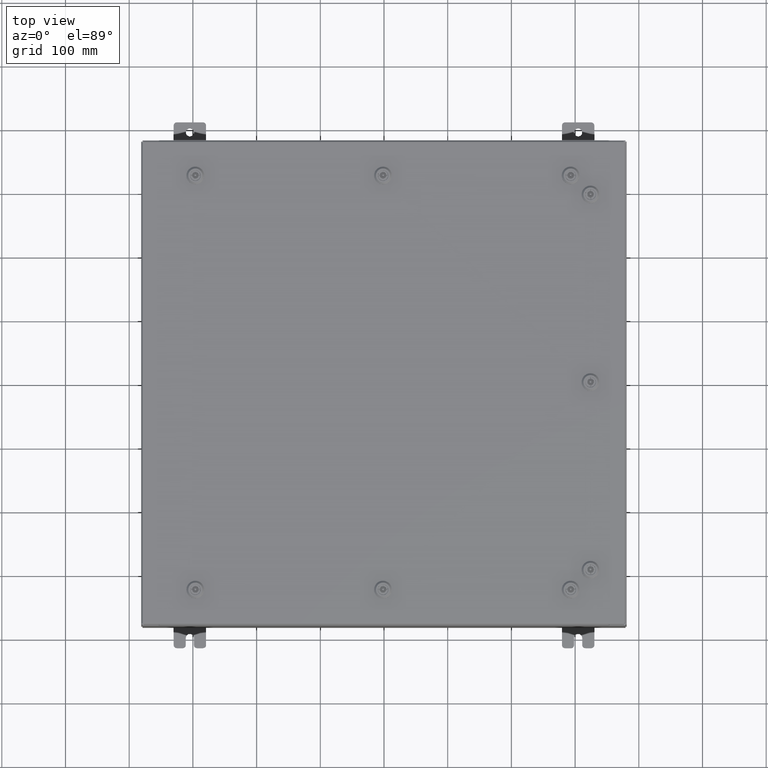
[diagram: clean part render]
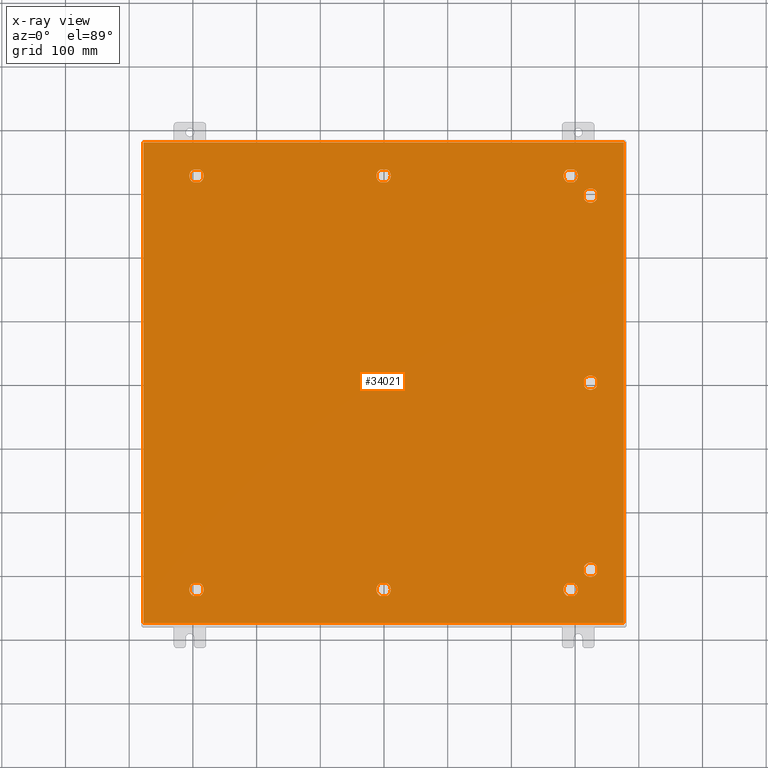
[diagram: x-ray — body ghosted, one internal face saturated and labeled with its STEP entity id]
A machine part, top view, then the same camera in x-ray: the body is ghosted and one INTERNAL B-rep face — a face not visible from any outside direction — is saturated and labeled: STEP entity #34021.
In plain terms, the highlighted planar face has unit normal (0, 0, -1).
Its self-contained STEP definition (entity closure, byte-faithful):
#157 = CARTESIAN_POINT ( 'NONE',  ( 12.78780000000000600, 11.56250000000001600, -0.07470000000000003000 ) ) ;
#445 = ORIENTED_EDGE ( 'NONE', *, *, #59019, .T. ) ;
#468 = EDGE_CURVE ( 'NONE', #18734, #53018, #52123, .T. ) ;
#869 = EDGE_LOOP ( 'NONE', ( #46917, #2688, #64497, #27289 ) ) ;
#1005 = ORIENTED_EDGE ( 'NONE', *, *, #56776, .T. ) ;
#1199 = DIRECTION ( 'NONE',  ( 1.095739467627838000E-014, -1.000000000000000000, 0.0000000000000000000 ) ) ;
#2067 = EDGE_CURVE ( 'NONE', #30515, #63431, #6011, .T. ) ;
#2154 = AXIS2_PLACEMENT_3D ( 'NONE', #18969, #54386, #24076 ) ;
#2299 = DIRECTION ( 'NONE',  ( -0.0000000000000000000, -0.0000000000000000000, 1.000000000000000000 ) ) ;
#2384 = DIRECTION ( 'NONE',  ( -1.000000000000000000, 0.0000000000000000000, 0.0000000000000000000 ) ) ;
#2539 = VERTEX_POINT ( 'NONE', #8014 ) ;
#2573 = ORIENTED_EDGE ( 'NONE', *, *, #9664, .T. ) ;
#2633 = VECTOR ( 'NONE', #42799, 39.37007874015748100 ) ;
#2651 = LINE ( 'NONE', #29884, #53403 ) ;
#2688 = ORIENTED_EDGE ( 'NONE', *, *, #4215, .T. ) ;
#2904 = VERTEX_POINT ( 'NONE', #10108 ) ;
#2972 = CARTESIAN_POINT ( 'NONE',  ( 1.529834876451987200E-014, -12.78779999999999400, -0.07470000000000003000 ) ) ;
#3131 = CARTESIAN_POINT ( 'NONE',  ( 1.529834876451987200E-014, 12.78779999999999400, -0.07470000000000003000 ) ) ;
#3178 = CARTESIAN_POINT ( 'NONE',  ( 11.56249999999998200, 12.78779999999999400, -0.07470000000000003000 ) ) ;
#3341 = CARTESIAN_POINT ( 'NONE',  ( 13.18280000000000400, 11.36304762473213100, -0.07470000000000003000 ) ) ;
#3354 = ORIENTED_EDGE ( 'NONE', *, *, #15461, .F. ) ;
#3480 = VERTEX_POINT ( 'NONE', #58962 ) ;
#3527 = DIRECTION ( 'NONE',  ( -1.000000000000000000, 0.0000000000000000000, 0.0000000000000000000 ) ) ;
#3657 = ORIENTED_EDGE ( 'NONE', *, *, #14268, .T. ) ;
#4109 = CARTESIAN_POINT ( 'NONE',  ( 12.39280000000001000, -11.36304762473213300, -0.07470000000000003000 ) ) ;
#4215 = EDGE_CURVE ( 'NONE', #37140, #33533, #12246, .T. ) ;
#4331 = CARTESIAN_POINT ( 'NONE',  ( 0.1994523752679070700, -13.18279999999998400, -0.07470000000000000300 ) ) ;
#4383 = CARTESIAN_POINT ( 'NONE',  ( 1.529834876451987200E-014, -12.78779999999999400, -0.07470000000000003000 ) ) ;
#4493 = VERTEX_POINT ( 'NONE', #33648 ) ;
#4549 = DIRECTION ( 'NONE',  ( 1.000000000000000000, 0.0000000000000000000, 0.0000000000000000000 ) ) ;
#4651 = ORIENTED_EDGE ( 'NONE', *, *, #45382, .T. ) ;
#4764 = DIRECTION ( 'NONE',  ( -0.0000000000000000000, -0.0000000000000000000, 1.000000000000000000 ) ) ;
#5079 = AXIS2_PLACEMENT_3D ( 'NONE', #64205, #33937, #3527 ) ;
#5269 = DIRECTION ( 'NONE',  ( -1.000000000000000000, 0.0000000000000000000, 0.0000000000000000000 ) ) ;
#5426 = EDGE_CURVE ( 'NONE', #58402, #4493, #29630, .T. ) ;
#5647 = FACE_BOUND ( 'NONE', #24410, .T. ) ;
#5863 = EDGE_CURVE ( 'NONE', #31769, #30515, #33573, .T. ) ;
#6011 = CIRCLE ( 'NONE', #36255, 0.4424999999999973400 ) ;
#6072 = CARTESIAN_POINT ( 'NONE',  ( 12.39280000000001400, -11.76195237526790500, -0.07470000000000003000 ) ) ;
#6112 = EDGE_CURVE ( 'NONE', #30696, #13565, #65263, .T. ) ;
#6473 = CARTESIAN_POINT ( 'NONE',  ( 11.36304762473210100, -12.39279999999999800, -0.07470000000000000300 ) ) ;
#6543 = LINE ( 'NONE', #41663, #45356 ) ;
#6623 = CIRCLE ( 'NONE', #2154, 0.4424999999999983400 ) ;
#7254 = FACE_BOUND ( 'NONE', #56861, .T. ) ;
#7258 = DIRECTION ( 'NONE',  ( -0.0000000000000000000, -0.0000000000000000000, 1.000000000000000000 ) ) ;
#7345 = EDGE_CURVE ( 'NONE', #2904, #58137, #33582, .T. ) ;
#8014 = CARTESIAN_POINT ( 'NONE',  ( 0.1994523752678995500, 12.39279999999999800, -0.07470000000000000300 ) ) ;
#8059 = DIRECTION ( 'NONE',  ( -0.0000000000000000000, -0.0000000000000000000, 1.000000000000000000 ) ) ;
#8113 = CARTESIAN_POINT ( 'NONE',  ( -0.1994523752678689600, -12.39279999999999800, -0.07470000000000003000 ) ) ;
#8224 = DIRECTION ( 'NONE',  ( -1.000000000000000000, 0.0000000000000000000, 0.0000000000000000000 ) ) ;
#8273 = DIRECTION ( 'NONE',  ( -1.000000000000000000, 0.0000000000000000000, 0.0000000000000000000 ) ) ;
#8297 = ORIENTED_EDGE ( 'NONE', *, *, #27475, .T. ) ;
#8399 = DIRECTION ( 'NONE',  ( -0.0000000000000000000, -0.0000000000000000000, 1.000000000000000000 ) ) ;
#9028 = VERTEX_POINT ( 'NONE', #42970 ) ;
#9091 = DIRECTION ( 'NONE',  ( -1.000000000000000000, 0.0000000000000000000, 0.0000000000000000000 ) ) ;
#9293 = DIRECTION ( 'NONE',  ( -0.0000000000000000000, -0.0000000000000000000, 1.000000000000000000 ) ) ;
#9480 = DIRECTION ( 'NONE',  ( -1.000000000000000000, 0.0000000000000000000, 0.0000000000000000000 ) ) ;
#9621 = CARTESIAN_POINT ( 'NONE',  ( 0.1994523752679067700, -13.18279999999998400, -0.07470000000000003000 ) ) ;
#9664 = EDGE_CURVE ( 'NONE', #34633, #62739, #53310, .T. ) ;
#9792 = ORIENTED_EDGE ( 'NONE', *, *, #44309, .T. ) ;
#9827 = AXIS2_PLACEMENT_3D ( 'NONE', #39625, #9293, #44697 ) ;
#9863 = EDGE_CURVE ( 'NONE', #27432, #46899, #46905, .T. ) ;
#9887 = LINE ( 'NONE', #61822, #48722 ) ;
#9947 = DIRECTION ( 'NONE',  ( 1.000000000000000000, 0.0000000000000000000, 0.0000000000000000000 ) ) ;
#10108 = CARTESIAN_POINT ( 'NONE',  ( 14.84979999999999700, -14.84979999999999700, -0.07470000000000000300 ) ) ;
#10440 = ORIENTED_EDGE ( 'NONE', *, *, #21283, .T. ) ;
#10588 = LINE ( 'NONE', #34919, #49408 ) ;
#11103 = AXIS2_PLACEMENT_3D ( 'NONE', #42548, #12252, #47649 ) ;
#11206 = CIRCLE ( 'NONE', #32398, 0.4424999999999961700 ) ;
#11354 = DIRECTION ( 'NONE',  ( -1.095739467627838000E-014, -1.000000000000000000, 0.0000000000000000000 ) ) ;
#12190 = EDGE_CURVE ( 'NONE', #50779, #25644, #57122, .T. ) ;
#12246 = LINE ( 'NONE', #38164, #27382 ) ;
#12252 = DIRECTION ( 'NONE',  ( -0.0000000000000000000, -0.0000000000000000000, 1.000000000000000000 ) ) ;
#12401 = VERTEX_POINT ( 'NONE', #63032 ) ;
#12524 = LINE ( 'NONE', #61520, #63210 ) ;
#13026 = VECTOR ( 'NONE', #60018, 39.37007874015748100 ) ;
#13226 = CARTESIAN_POINT ( 'NONE',  ( 13.18280000000000200, 0.1994523752679009100, -0.07470000000000003000 ) ) ;
#13320 = EDGE_LOOP ( 'NONE', ( #62980, #58267, #28875, #2573, #57853 ) ) ;
#13390 = CARTESIAN_POINT ( 'NONE',  ( 13.18280000000000200, -11.76195237526789900, -0.07470000000000003000 ) ) ;
#13432 = CARTESIAN_POINT ( 'NONE',  ( -11.36304762473209200, -13.18279999999998400, -0.07470000000000000300 ) ) ;
#13565 = VERTEX_POINT ( 'NONE', #37568 ) ;
#13685 = VERTEX_POINT ( 'NONE', #13432 ) ;
#14268 = EDGE_CURVE ( 'NONE', #4493, #23588, #18959, .T. ) ;
#14355 = ORIENTED_EDGE ( 'NONE', *, *, #51502, .T. ) ;
#14525 = ORIENTED_EDGE ( 'NONE', *, *, #44565, .T. ) ;
#14545 = VECTOR ( 'NONE', #30692, 39.37007874015748100 ) ;
#15182 = CARTESIAN_POINT ( 'NONE',  ( 11.36304762473209700, 12.39279999999999800, -0.07470000000000003000 ) ) ;
#15461 = EDGE_CURVE ( 'NONE', #46899, #2904, #12524, .T. ) ;
#15959 = CARTESIAN_POINT ( 'NONE',  ( 11.56249999999998200, -12.78779999999999400, -0.07470000000000003000 ) ) ;
#16089 = CARTESIAN_POINT ( 'NONE',  ( -11.36304762473209700, 12.39279999999999800, -0.07470000000000000300 ) ) ;
#16375 = CARTESIAN_POINT ( 'NONE',  ( 0.0000000000000000000, 0.0000000000000000000, -0.07470000000000000300 ) ) ;
#16382 = VERTEX_POINT ( 'NONE', #33131 ) ;
#16473 = DIRECTION ( 'NONE',  ( -0.0000000000000000000, -0.0000000000000000000, 1.000000000000000000 ) ) ;
#16483 = DIRECTION ( 'NONE',  ( -0.0000000000000000000, -0.0000000000000000000, 1.000000000000000000 ) ) ;
#16601 = DIRECTION ( 'NONE',  ( -0.0000000000000000000, -0.0000000000000000000, 1.000000000000000000 ) ) ;
#17789 = CIRCLE ( 'NONE', #36881, 0.4424999999999983400 ) ;
#18319 = CARTESIAN_POINT ( 'NONE',  ( 0.4425000000000126100, -12.78779999999999400, -0.07470000000000003000 ) ) ;
#18343 = DIRECTION ( 'NONE',  ( -5.478697338139234300E-015, 1.000000000000000000, 0.0000000000000000000 ) ) ;
#18479 = LINE ( 'NONE', #59864, #30374 ) ;
#18734 = VERTEX_POINT ( 'NONE', #34073 ) ;
#18775 = LINE ( 'NONE', #9621, #32264 ) ;
#18959 = CIRCLE ( 'NONE', #30492, 0.4424999999999983400 ) ;
#18969 = CARTESIAN_POINT ( 'NONE',  ( 12.78780000000000600, 1.529834876451990400E-014, -0.07470000000000003000 ) ) ;
#19094 = ORIENTED_EDGE ( 'NONE', *, *, #12190, .T. ) ;
#19184 = FACE_BOUND ( 'NONE', #59302, .T. ) ;
#19942 = VERTEX_POINT ( 'NONE', #13390 ) ;
#20037 = LINE ( 'NONE', #63349, #58806 ) ;
#20183 = AXIS2_PLACEMENT_3D ( 'NONE', #59060, #28782, #64118 ) ;
#20537 = EDGE_CURVE ( 'NONE', #9028, #30314, #9887, .T. ) ;
#20554 = CARTESIAN_POINT ( 'NONE',  ( 12.78780000000000600, 1.529834876451990400E-014, -0.07470000000000003000 ) ) ;
#20564 = EDGE_CURVE ( 'NONE', #38421, #27110, #62224, .T. ) ;
#20592 = CIRCLE ( 'NONE', #20183, 0.4424999999999983400 ) ;
#20744 = LINE ( 'NONE', #13226, #57942 ) ;
#20797 = FACE_BOUND ( 'NONE', #869, .T. ) ;
#20856 = VERTEX_POINT ( 'NONE', #32631 ) ;
#21076 = DIRECTION ( 'NONE',  ( -1.000000000000000000, 0.0000000000000000000, 0.0000000000000000000 ) ) ;
#21215 = CIRCLE ( 'NONE', #32441, 0.4424999999999961700 ) ;
#21283 = EDGE_CURVE ( 'NONE', #63431, #64726, #41535, .T. ) ;
#21523 = CARTESIAN_POINT ( 'NONE',  ( 14.84979999999999700, 14.84980000000000000, -0.07470000000000129300 ) ) ;
#21578 = ORIENTED_EDGE ( 'NONE', *, *, #64320, .T. ) ;
#21650 = ORIENTED_EDGE ( 'NONE', *, *, #9863, .F. ) ;
#21697 = CIRCLE ( 'NONE', #52589, 0.4424999999999983400 ) ;
#21853 = VECTOR ( 'NONE', #31759, 39.37007874015748100 ) ;
#22191 = DIRECTION ( 'NONE',  ( -1.000000000000000000, 0.0000000000000000000, 0.0000000000000000000 ) ) ;
#22202 = ORIENTED_EDGE ( 'NONE', *, *, #5863, .T. ) ;
#22212 = CARTESIAN_POINT ( 'NONE',  ( -11.11999999999998300, 12.78779999999999400, -0.07470000000000003000 ) ) ;
#23374 = VECTOR ( 'NONE', #51778, 39.37007874015748100 ) ;
#23588 = VERTEX_POINT ( 'NONE', #56092 ) ;
#23880 = EDGE_CURVE ( 'NONE', #64726, #12401, #38018, .T. ) ;
#24076 = DIRECTION ( 'NONE',  ( -1.000000000000000000, 1.776356839400250500E-015, 0.0000000000000000000 ) ) ;
#24166 = AXIS2_PLACEMENT_3D ( 'NONE', #3131, #38578, #8224 ) ;
#24357 = EDGE_CURVE ( 'NONE', #27110, #50779, #20592, .T. ) ;
#24410 = EDGE_LOOP ( 'NONE', ( #38867, #4651, #48672, #39963, #19094 ) ) ;
#24513 = DIRECTION ( 'NONE',  ( -1.095739467627836100E-014, -1.000000000000000000, 0.0000000000000000000 ) ) ;
#24563 = ORIENTED_EDGE ( 'NONE', *, *, #63275, .T. ) ;
#24776 = DIRECTION ( 'NONE',  ( 1.000000000000000000, 1.095739467627832000E-014, 0.0000000000000000000 ) ) ;
#24971 = CARTESIAN_POINT ( 'NONE',  ( 1.529834876451987200E-014, -12.78779999999999400, -0.07470000000000003000 ) ) ;
#25644 = VERTEX_POINT ( 'NONE', #26313 ) ;
#25688 = DIRECTION ( 'NONE',  ( -1.000000000000000000, 0.0000000000000000000, 0.0000000000000000000 ) ) ;
#26216 = DIRECTION ( 'NONE',  ( 5.478697338139220100E-015, 1.000000000000000000, 0.0000000000000000000 ) ) ;
#26313 = CARTESIAN_POINT ( 'NONE',  ( 11.76195237526786600, 12.39279999999999800, -0.07470000000000003000 ) ) ;
#26598 = CARTESIAN_POINT ( 'NONE',  ( 11.76195237526786200, 13.18279999999999000, -0.07470000000000003000 ) ) ;
#26950 = VECTOR ( 'NONE', #26216, 39.37007874015748100 ) ;
#27037 = CARTESIAN_POINT ( 'NONE',  ( 12.00499999999997900, 12.78779999999999400, -0.07470000000000003000 ) ) ;
#27110 = VERTEX_POINT ( 'NONE', #41254 ) ;
#27160 = CARTESIAN_POINT ( 'NONE',  ( 14.84979999999999700, 14.84980000000000000, -0.07470000000000000300 ) ) ;
#27289 = ORIENTED_EDGE ( 'NONE', *, *, #32767, .T. ) ;
#27382 = VECTOR ( 'NONE', #28479, 39.37007874015748100 ) ;
#27432 = VERTEX_POINT ( 'NONE', #43436 ) ;
#27475 = EDGE_CURVE ( 'NONE', #2539, #39807, #52061, .T. ) ;
#27779 = CARTESIAN_POINT ( 'NONE',  ( 13.18280000000000400, -11.36304762473213100, -0.07470000000000003000 ) ) ;
#27908 = ORIENTED_EDGE ( 'NONE', *, *, #51873, .F. ) ;
#27994 = DIRECTION ( 'NONE',  ( -1.000000000000000000, 0.0000000000000000000, 0.0000000000000000000 ) ) ;
#28479 = DIRECTION ( 'NONE',  ( -5.478697338139220100E-015, 1.000000000000000000, 0.0000000000000000000 ) ) ;
#28548 = CARTESIAN_POINT ( 'NONE',  ( -11.36304762473210100, -12.39279999999999800, -0.07470000000000003000 ) ) ;
#28566 = CARTESIAN_POINT ( 'NONE',  ( 11.56249999999998200, 12.78779999999999400, -0.07470000000000003000 ) ) ;
#28782 = DIRECTION ( 'NONE',  ( -0.0000000000000000000, -0.0000000000000000000, 1.000000000000000000 ) ) ;
#28875 = ORIENTED_EDGE ( 'NONE', *, *, #48701, .T. ) ;
#29143 = CARTESIAN_POINT ( 'NONE',  ( -11.76195237526786600, -13.18279999999999000, -0.07470000000000003000 ) ) ;
#29217 = LINE ( 'NONE', #47444, #54546 ) ;
#29383 = CARTESIAN_POINT ( 'NONE',  ( -14.84979999999999700, 14.84979999999999700, -0.07470000000000019700 ) ) ;
#29424 = VERTEX_POINT ( 'NONE', #35452 ) ;
#29630 = LINE ( 'NONE', #36877, #14545 ) ;
#29734 = VECTOR ( 'NONE', #9091, 39.37007874015748100 ) ;
#29851 = CARTESIAN_POINT ( 'NONE',  ( 0.4425000000000126100, 12.78779999999999400, -0.07470000000000003000 ) ) ;
#29884 = CARTESIAN_POINT ( 'NONE',  ( 0.1994523752678995500, 12.39279999999999800, -0.07470000000000003000 ) ) ;
#30019 = CARTESIAN_POINT ( 'NONE',  ( 12.39280000000001400, 11.76195237526790500, -0.07470000000000003000 ) ) ;
#30028 = CARTESIAN_POINT ( 'NONE',  ( 12.78780000000000600, -11.56250000000001600, -0.07470000000000003000 ) ) ;
#30314 = VERTEX_POINT ( 'NONE', #36223 ) ;
#30374 = VECTOR ( 'NONE', #24513, 39.37007874015748100 ) ;
#30492 = AXIS2_PLACEMENT_3D ( 'NONE', #63104, #32827, #2384 ) ;
#30515 = VERTEX_POINT ( 'NONE', #18319 ) ;
#30692 = DIRECTION ( 'NONE',  ( 1.000000000000000000, -1.095739467627832000E-014, 0.0000000000000000000 ) ) ;
#30696 = VERTEX_POINT ( 'NONE', #49472 ) ;
#31100 = FACE_OUTER_BOUND ( 'NONE', #63632, .T. ) ;
#31346 = ORIENTED_EDGE ( 'NONE', *, *, #5426, .T. ) ;
#31530 = DIRECTION ( 'NONE',  ( -1.000000000000000000, 1.095739467627832000E-014, 0.0000000000000000000 ) ) ;
#31722 = VERTEX_POINT ( 'NONE', #4109 ) ;
#31759 = DIRECTION ( 'NONE',  ( -1.000000000000000000, -1.095739467627832000E-014, 0.0000000000000000000 ) ) ;
#31769 = VERTEX_POINT ( 'NONE', #4331 ) ;
#32264 = VECTOR ( 'NONE', #45038, 39.37007874015748100 ) ;
#32398 = AXIS2_PLACEMENT_3D ( 'NONE', #28566, #63898, #33644 ) ;
#32441 = AXIS2_PLACEMENT_3D ( 'NONE', #15959, #51325, #21076 ) ;
#32631 = CARTESIAN_POINT ( 'NONE',  ( -11.76195237526786600, 12.39279999999999800, -0.07470000000000003000 ) ) ;
#32689 = FACE_BOUND ( 'NONE', #62431, .T. ) ;
#32730 = CIRCLE ( 'NONE', #52199, 0.4424999999999969000 ) ;
#32746 = CARTESIAN_POINT ( 'NONE',  ( 1.529834876451987200E-014, 12.78779999999999400, -0.07470000000000003000 ) ) ;
#32750 = EDGE_CURVE ( 'NONE', #61618, #9028, #21697, .T. ) ;
#32767 = EDGE_CURVE ( 'NONE', #65738, #16382, #6543, .T. ) ;
#32827 = DIRECTION ( 'NONE',  ( -0.0000000000000000000, -0.0000000000000000000, 1.000000000000000000 ) ) ;
#32869 = ORIENTED_EDGE ( 'NONE', *, *, #64418, .T. ) ;
#32912 = AXIS2_PLACEMENT_3D ( 'NONE', #4383, #39828, #9480 ) ;
#33131 = CARTESIAN_POINT ( 'NONE',  ( 12.39280000000001000, 11.36304762473213300, -0.07470000000000003000 ) ) ;
#33167 = AXIS2_PLACEMENT_3D ( 'NONE', #3178, #38628, #8273 ) ;
#33533 = VERTEX_POINT ( 'NONE', #51839 ) ;
#33573 = CIRCLE ( 'NONE', #37216, 0.4424999999999973400 ) ;
#33582 = LINE ( 'NONE', #36095, #42211 ) ;
#33644 = DIRECTION ( 'NONE',  ( -1.000000000000000000, 0.0000000000000000000, 0.0000000000000000000 ) ) ;
#33648 = CARTESIAN_POINT ( 'NONE',  ( 11.76195237526786600, -13.18279999999999000, -0.07470000000000003000 ) ) ;
#33670 = CARTESIAN_POINT ( 'NONE',  ( -14.84979999999999700, -14.84979999999999700, -0.07470000000000000300 ) ) ;
#33687 = EDGE_CURVE ( 'NONE', #62739, #18734, #20037, .T. ) ;
#33937 = DIRECTION ( 'NONE',  ( -0.0000000000000000000, -0.0000000000000000000, 1.000000000000000000 ) ) ;
#34021 = ADVANCED_FACE ( 'NONE', ( #32689, #20797, #7254, #46058, #59552, #19184, #5647, #57999, #44452, #31100 ), #46640, .T. ) ;
#34073 = CARTESIAN_POINT ( 'NONE',  ( -11.76195237526786700, -12.39279999999999800, -0.07470000000000003000 ) ) ;
#34087 = ORIENTED_EDGE ( 'NONE', *, *, #52684, .T. ) ;
#34178 = ORIENTED_EDGE ( 'NONE', *, *, #44157, .T. ) ;
#34219 = EDGE_CURVE ( 'NONE', #25644, #38528, #11206, .T. ) ;
#34633 = VERTEX_POINT ( 'NONE', #41051 ) ;
#34661 = VERTEX_POINT ( 'NONE', #16089 ) ;
#34919 = CARTESIAN_POINT ( 'NONE',  ( -11.36304762473209200, -13.18279999999998400, -0.07470000000000003000 ) ) ;
#35084 = DIRECTION ( 'NONE',  ( -1.000000000000000000, 0.0000000000000000000, 0.0000000000000000000 ) ) ;
#35452 = CARTESIAN_POINT ( 'NONE',  ( 11.76195237526786700, -12.39279999999999800, -0.07470000000000003000 ) ) ;
#35656 = DIRECTION ( 'NONE',  ( -0.0000000000000000000, -0.0000000000000000000, 1.000000000000000000 ) ) ;
#36095 = CARTESIAN_POINT ( 'NONE',  ( 14.84979999999999700, -14.84979999999999500, -0.07470000000000019700 ) ) ;
#36223 = CARTESIAN_POINT ( 'NONE',  ( -11.76195237526786200, 13.18279999999999000, -0.07470000000000003000 ) ) ;
#36255 = AXIS2_PLACEMENT_3D ( 'NONE', #2972, #39843, #50616 ) ;
#36409 = CARTESIAN_POINT ( 'NONE',  ( 12.39280000000001400, -11.76195237526790500, -0.07470000000000000300 ) ) ;
#36731 = VERTEX_POINT ( 'NONE', #51443 ) ;
#36751 = VERTEX_POINT ( 'NONE', #36409 ) ;
#36824 = VERTEX_POINT ( 'NONE', #37072 ) ;
#36877 = CARTESIAN_POINT ( 'NONE',  ( 11.36304762473209200, -13.18279999999998400, -0.07470000000000003000 ) ) ;
#36881 = AXIS2_PLACEMENT_3D ( 'NONE', #37617, #7258, #42675 ) ;
#37072 = CARTESIAN_POINT ( 'NONE',  ( 13.18280000000000400, -0.1994523752678676000, -0.07470000000000003000 ) ) ;
#37140 = VERTEX_POINT ( 'NONE', #3341 ) ;
#37216 = AXIS2_PLACEMENT_3D ( 'NONE', #24971, #4764, #43327 ) ;
#37525 = ORIENTED_EDGE ( 'NONE', *, *, #61547, .T. ) ;
#37568 = CARTESIAN_POINT ( 'NONE',  ( -0.1994523752678657700, 13.18279999999999000, -0.07470000000000003000 ) ) ;
#37593 = AXIS2_PLACEMENT_3D ( 'NONE', #20554, #55990, #25688 ) ;
#37617 = CARTESIAN_POINT ( 'NONE',  ( 11.56249999999998200, -12.78779999999999400, -0.07470000000000003000 ) ) ;
#37730 = CARTESIAN_POINT ( 'NONE',  ( 11.36304762473210100, -12.39279999999999800, -0.07470000000000003000 ) ) ;
#37771 = DIRECTION ( 'NONE',  ( -1.000000000000000000, 0.0000000000000000000, 0.0000000000000000000 ) ) ;
#37905 = AXIS2_PLACEMENT_3D ( 'NONE', #50613, #50676, #22191 ) ;
#38018 = CIRCLE ( 'NONE', #32912, 0.4424999999999969000 ) ;
#38164 = CARTESIAN_POINT ( 'NONE',  ( 13.18280000000000200, 11.76195237526789900, -0.07470000000000003000 ) ) ;
#38421 = VERTEX_POINT ( 'NONE', #26598 ) ;
#38426 = CARTESIAN_POINT ( 'NONE',  ( -11.56249999999998200, -12.78779999999999400, -0.07470000000000003000 ) ) ;
#38528 = VERTEX_POINT ( 'NONE', #27037 ) ;
#38578 = DIRECTION ( 'NONE',  ( -0.0000000000000000000, -0.0000000000000000000, 1.000000000000000000 ) ) ;
#38628 = DIRECTION ( 'NONE',  ( -0.0000000000000000000, -0.0000000000000000000, 1.000000000000000000 ) ) ;
#38755 = CARTESIAN_POINT ( 'NONE',  ( 1.529834876451987200E-014, 12.78779999999999400, -0.07470000000000003000 ) ) ;
#38758 = AXIS2_PLACEMENT_3D ( 'NONE', #38426, #8059, #43490 ) ;
#38867 = ORIENTED_EDGE ( 'NONE', *, *, #34219, .T. ) ;
#38892 = CARTESIAN_POINT ( 'NONE',  ( 0.1994523752679067700, 13.18279999999998400, -0.07470000000000003000 ) ) ;
#39467 = AXIS2_PLACEMENT_3D ( 'NONE', #30028, #65362, #35084 ) ;
#39583 = ORIENTED_EDGE ( 'NONE', *, *, #50510, .T. ) ;
#39625 = CARTESIAN_POINT ( 'NONE',  ( -11.56249999999998200, 12.78779999999999400, -0.07470000000000003000 ) ) ;
#39715 = CIRCLE ( 'NONE', #37593, 0.4424999999999983400 ) ;
#39793 = VERTEX_POINT ( 'NONE', #39956 ) ;
#39807 = VERTEX_POINT ( 'NONE', #29851 ) ;
#39828 = DIRECTION ( 'NONE',  ( -0.0000000000000000000, -0.0000000000000000000, 1.000000000000000000 ) ) ;
#39843 = DIRECTION ( 'NONE',  ( -0.0000000000000000000, -0.0000000000000000000, 1.000000000000000000 ) ) ;
#39956 = CARTESIAN_POINT ( 'NONE',  ( 13.18280000000000400, 0.1994523752679009100, -0.07470000000000000300 ) ) ;
#39963 = ORIENTED_EDGE ( 'NONE', *, *, #24357, .T. ) ;
#40169 = VERTEX_POINT ( 'NONE', #52041 ) ;
#40320 = LINE ( 'NONE', #56508, #26950 ) ;
#40347 = DIRECTION ( 'NONE',  ( 0.0000000000000000000, 1.000000000000000000, 0.0000000000000000000 ) ) ;
#41051 = CARTESIAN_POINT ( 'NONE',  ( -11.11999999999998700, -12.78779999999999400, -0.07470000000000003000 ) ) ;
#41254 = CARTESIAN_POINT ( 'NONE',  ( 11.36304762473208800, 13.18279999999998400, -0.07470000000000000300 ) ) ;
#41494 = ORIENTED_EDGE ( 'NONE', *, *, #64935, .T. ) ;
#41535 = LINE ( 'NONE', #44267, #29734 ) ;
#41663 = CARTESIAN_POINT ( 'NONE',  ( 12.39280000000001400, 11.76195237526790500, -0.07470000000000003000 ) ) ;
#42211 = VECTOR ( 'NONE', #40347, 39.37007874015748100 ) ;
#42334 = ORIENTED_EDGE ( 'NONE', *, *, #50997, .T. ) ;
#42347 = DIRECTION ( 'NONE',  ( 1.000000000000000000, 0.0000000000000000000, 0.0000000000000000000 ) ) ;
#42548 = CARTESIAN_POINT ( 'NONE',  ( 12.78780000000000600, 11.56250000000001600, -0.07470000000000003000 ) ) ;
#42675 = DIRECTION ( 'NONE',  ( -1.000000000000000000, 0.0000000000000000000, 0.0000000000000000000 ) ) ;
#42799 = DIRECTION ( 'NONE',  ( -1.000000000000000000, 0.0000000000000000000, 0.0000000000000000000 ) ) ;
#42970 = CARTESIAN_POINT ( 'NONE',  ( -11.36304762473208800, 13.18279999999998400, -0.07470000000000003000 ) ) ;
#43327 = DIRECTION ( 'NONE',  ( -1.000000000000000000, 0.0000000000000000000, 0.0000000000000000000 ) ) ;
#43436 = CARTESIAN_POINT ( 'NONE',  ( -14.84979999999999700, 14.84980000000000000, -0.07470000000000000300 ) ) ;
#43490 = DIRECTION ( 'NONE',  ( -1.000000000000000000, 0.0000000000000000000, 0.0000000000000000000 ) ) ;
#43608 = VECTOR ( 'NONE', #9947, 39.37007874015748100 ) ;
#43649 = CARTESIAN_POINT ( 'NONE',  ( 0.1994523752678993800, -12.39279999999999800, -0.07470000000000003000 ) ) ;
#43830 = DIRECTION ( 'NONE',  ( -1.000000000000000000, 4.938934225833725800E-015, 0.0000000000000000000 ) ) ;
#43924 = CIRCLE ( 'NONE', #11103, 0.4424999999999983400 ) ;
#44157 = EDGE_CURVE ( 'NONE', #23588, #29424, #17789, .T. ) ;
#44267 = CARTESIAN_POINT ( 'NONE',  ( 0.1994523752678995500, -12.39279999999999800, -0.07470000000000003000 ) ) ;
#44309 = EDGE_CURVE ( 'NONE', #36731, #2539, #2651, .T. ) ;
#44452 = FACE_BOUND ( 'NONE', #49742, .T. ) ;
#44472 = ORIENTED_EDGE ( 'NONE', *, *, #46076, .T. ) ;
#44565 = EDGE_CURVE ( 'NONE', #31722, #36751, #45396, .T. ) ;
#44622 = ORIENTED_EDGE ( 'NONE', *, *, #20537, .T. ) ;
#44697 = DIRECTION ( 'NONE',  ( -1.000000000000000000, 0.0000000000000000000, 0.0000000000000000000 ) ) ;
#45038 = DIRECTION ( 'NONE',  ( 1.000000000000000000, 1.095739467627836100E-014, 0.0000000000000000000 ) ) ;
#45356 = VECTOR ( 'NONE', #11354, 39.37007874015748100 ) ;
#45382 = EDGE_CURVE ( 'NONE', #38528, #38421, #58861, .T. ) ;
#45396 = LINE ( 'NONE', #6072, #58920 ) ;
#45479 = EDGE_CURVE ( 'NONE', #3480, #40169, #18479, .T. ) ;
#45990 = DIRECTION ( 'NONE',  ( 0.0000000000000000000, 0.0000000000000000000, -1.000000000000000000 ) ) ;
#46036 = CIRCLE ( 'NONE', #39467, 0.4424999999999961700 ) ;
#46058 = FACE_BOUND ( 'NONE', #60636, .T. ) ;
#46076 = EDGE_CURVE ( 'NONE', #13565, #36731, #32730, .T. ) ;
#46187 = DIRECTION ( 'NONE',  ( 1.000000000000000000, -0.0000000000000000000, -0.0000000000000000000 ) ) ;
#46189 = CIRCLE ( 'NONE', #49697, 0.4424999999999983400 ) ;
#46640 = PLANE ( 'NONE',  #53078 ) ;
#46744 = CARTESIAN_POINT ( 'NONE',  ( -11.56249999999998200, 12.78779999999999400, -0.07470000000000003000 ) ) ;
#46753 = CARTESIAN_POINT ( 'NONE',  ( 12.78780000000000600, -11.56250000000001600, -0.07470000000000003000 ) ) ;
#46873 = CARTESIAN_POINT ( 'NONE',  ( -11.56249999999998200, 12.78779999999999400, -0.07470000000000003000 ) ) ;
#46899 = VERTEX_POINT ( 'NONE', #33670 ) ;
#46905 = LINE ( 'NONE', #29383, #58820 ) ;
#46917 = ORIENTED_EDGE ( 'NONE', *, *, #51145, .T. ) ;
#47092 = EDGE_CURVE ( 'NONE', #36751, #19942, #46036, .T. ) ;
#47220 = ORIENTED_EDGE ( 'NONE', *, *, #32750, .T. ) ;
#47444 = CARTESIAN_POINT ( 'NONE',  ( -11.36304762473209700, 12.39279999999999800, -0.07470000000000003000 ) ) ;
#47649 = DIRECTION ( 'NONE',  ( -1.000000000000000000, 0.0000000000000000000, 0.0000000000000000000 ) ) ;
#48556 = ORIENTED_EDGE ( 'NONE', *, *, #6112, .T. ) ;
#48672 = ORIENTED_EDGE ( 'NONE', *, *, #20564, .T. ) ;
#48701 = EDGE_CURVE ( 'NONE', #13685, #34633, #53920, .T. ) ;
#48722 = VECTOR ( 'NONE', #31530, 39.37007874015748100 ) ;
#48730 = AXIS2_PLACEMENT_3D ( 'NONE', #38755, #8399, #43830 ) ;
#48796 = ORIENTED_EDGE ( 'NONE', *, *, #2067, .T. ) ;
#49408 = VECTOR ( 'NONE', #24776, 39.37007874015748100 ) ;
#49472 = CARTESIAN_POINT ( 'NONE',  ( 0.1994523752679069900, 13.18279999999998400, -0.07470000000000003000 ) ) ;
#49652 = CIRCLE ( 'NONE', #64160, 0.4424999999999961700 ) ;
#49697 = AXIS2_PLACEMENT_3D ( 'NONE', #46753, #16483, #51868 ) ;
#49742 = EDGE_LOOP ( 'NONE', ( #44472, #9792, #8297, #57629, #48556 ) ) ;
#50466 = CARTESIAN_POINT ( 'NONE',  ( 11.36304762473209700, 12.39279999999999800, -0.07470000000000003000 ) ) ;
#50510 = EDGE_CURVE ( 'NONE', #40169, #36824, #6623, .T. ) ;
#50613 = CARTESIAN_POINT ( 'NONE',  ( -11.56249999999998200, -12.78779999999999400, -0.07470000000000003000 ) ) ;
#50616 = DIRECTION ( 'NONE',  ( -1.000000000000000000, 0.0000000000000000000, 0.0000000000000000000 ) ) ;
#50676 = DIRECTION ( 'NONE',  ( -0.0000000000000000000, -0.0000000000000000000, 1.000000000000000000 ) ) ;
#50779 = VERTEX_POINT ( 'NONE', #15182 ) ;
#50997 = EDGE_CURVE ( 'NONE', #53741, #31722, #46189, .T. ) ;
#51145 = EDGE_CURVE ( 'NONE', #16382, #37140, #43924, .T. ) ;
#51325 = DIRECTION ( 'NONE',  ( -0.0000000000000000000, -0.0000000000000000000, 1.000000000000000000 ) ) ;
#51443 = CARTESIAN_POINT ( 'NONE',  ( -0.1994523752678689600, 12.39279999999999800, -0.07470000000000003000 ) ) ;
#51502 = EDGE_CURVE ( 'NONE', #30314, #20856, #58217, .T. ) ;
#51778 = DIRECTION ( 'NONE',  ( -1.000000000000000000, -0.0000000000000000000, -0.0000000000000000000 ) ) ;
#51839 = CARTESIAN_POINT ( 'NONE',  ( 13.18280000000000200, 11.76195237526789900, -0.07470000000000000300 ) ) ;
#51860 = DIRECTION ( 'NONE',  ( -1.000000000000000000, 0.0000000000000000000, 0.0000000000000000000 ) ) ;
#51868 = DIRECTION ( 'NONE',  ( -1.000000000000000000, 0.0000000000000000000, 0.0000000000000000000 ) ) ;
#51873 = EDGE_CURVE ( 'NONE', #58137, #27432, #62146, .T. ) ;
#51987 = DIRECTION ( 'NONE',  ( -1.000000000000000000, 0.0000000000000000000, 0.0000000000000000000 ) ) ;
#52041 = CARTESIAN_POINT ( 'NONE',  ( 12.39280000000001000, -0.1994523752678671600, -0.07470000000000003000 ) ) ;
#52061 = CIRCLE ( 'NONE', #24166, 0.4424999999999973400 ) ;
#52123 = CIRCLE ( 'NONE', #37905, 0.4424999999999983400 ) ;
#52199 = AXIS2_PLACEMENT_3D ( 'NONE', #32746, #2299, #37771 ) ;
#52279 = EDGE_CURVE ( 'NONE', #53018, #13685, #10588, .T. ) ;
#52589 = AXIS2_PLACEMENT_3D ( 'NONE', #46744, #16473, #51860 ) ;
#52684 = EDGE_CURVE ( 'NONE', #29424, #54801, #56561, .T. ) ;
#52762 = AXIS2_PLACEMENT_3D ( 'NONE', #46873, #16601, #51987 ) ;
#53018 = VERTEX_POINT ( 'NONE', #29143 ) ;
#53078 = AXIS2_PLACEMENT_3D ( 'NONE', #16375, #45990, #56884 ) ;
#53310 = CIRCLE ( 'NONE', #38758, 0.4424999999999961700 ) ;
#53403 = VECTOR ( 'NONE', #4549, 39.37007874015748100 ) ;
#53741 = VERTEX_POINT ( 'NONE', #27779 ) ;
#53920 = CIRCLE ( 'NONE', #5079, 0.4424999999999961700 ) ;
#54386 = DIRECTION ( 'NONE',  ( -0.0000000000000000000, -0.0000000000000000000, 1.000000000000000000 ) ) ;
#54546 = VECTOR ( 'NONE', #42347, 39.37007874015748100 ) ;
#54801 = VERTEX_POINT ( 'NONE', #6473 ) ;
#55861 = ORIENTED_EDGE ( 'NONE', *, *, #23880, .T. ) ;
#55990 = DIRECTION ( 'NONE',  ( -0.0000000000000000000, -0.0000000000000000000, 1.000000000000000000 ) ) ;
#56092 = CARTESIAN_POINT ( 'NONE',  ( 12.00499999999998100, -12.78779999999999400, -0.07470000000000003000 ) ) ;
#56508 = CARTESIAN_POINT ( 'NONE',  ( 13.18280000000000200, -11.76195237526789900, -0.07470000000000003000 ) ) ;
#56561 = LINE ( 'NONE', #37730, #2633 ) ;
#56776 = EDGE_CURVE ( 'NONE', #39793, #3480, #39715, .T. ) ;
#56815 = CIRCLE ( 'NONE', #52762, 0.4424999999999983400 ) ;
#56861 = EDGE_LOOP ( 'NONE', ( #39583, #445, #1005, #63629 ) ) ;
#56884 = DIRECTION ( 'NONE',  ( -1.000000000000000000, 0.0000000000000000000, -0.0000000000000000000 ) ) ;
#57122 = LINE ( 'NONE', #50466, #43608 ) ;
#57629 = ORIENTED_EDGE ( 'NONE', *, *, #60264, .T. ) ;
#57853 = ORIENTED_EDGE ( 'NONE', *, *, #33687, .T. ) ;
#57942 = VECTOR ( 'NONE', #18343, 39.37007874015748100 ) ;
#57999 = FACE_BOUND ( 'NONE', #63846, .T. ) ;
#58137 = VERTEX_POINT ( 'NONE', #27160 ) ;
#58217 = CIRCLE ( 'NONE', #9827, 0.4424999999999961700 ) ;
#58267 = ORIENTED_EDGE ( 'NONE', *, *, #52279, .T. ) ;
#58402 = VERTEX_POINT ( 'NONE', #65566 ) ;
#58806 = VECTOR ( 'NONE', #27994, 39.37007874015748100 ) ;
#58820 = VECTOR ( 'NONE', #59656, 39.37007874015748100 ) ;
#58861 = CIRCLE ( 'NONE', #33167, 0.4424999999999961700 ) ;
#58920 = VECTOR ( 'NONE', #1199, 39.37007874015748100 ) ;
#58962 = CARTESIAN_POINT ( 'NONE',  ( 12.39280000000001400, 0.1994523752679064900, -0.07470000000000003000 ) ) ;
#59019 = EDGE_CURVE ( 'NONE', #36824, #39793, #20744, .T. ) ;
#59060 = CARTESIAN_POINT ( 'NONE',  ( 11.56249999999998200, 12.78779999999999400, -0.07470000000000003000 ) ) ;
#59302 = EDGE_LOOP ( 'NONE', ( #55861, #41494, #22202, #48796, #10440 ) ) ;
#59346 = ORIENTED_EDGE ( 'NONE', *, *, #47092, .T. ) ;
#59520 = ORIENTED_EDGE ( 'NONE', *, *, #7345, .F. ) ;
#59552 = FACE_BOUND ( 'NONE', #13320, .T. ) ;
#59656 = DIRECTION ( 'NONE',  ( 0.0000000000000000000, -1.000000000000000000, 0.0000000000000000000 ) ) ;
#59864 = CARTESIAN_POINT ( 'NONE',  ( 12.39280000000001400, 0.1994523752679053800, -0.07470000000000003000 ) ) ;
#60018 = DIRECTION ( 'NONE',  ( -1.000000000000000000, 1.095739467627836100E-014, 0.0000000000000000000 ) ) ;
#60195 = CIRCLE ( 'NONE', #48730, 0.4424999999999973400 ) ;
#60264 = EDGE_CURVE ( 'NONE', #39807, #30696, #60195, .T. ) ;
#60636 = EDGE_LOOP ( 'NONE', ( #3657, #34178, #34087, #21578, #31346 ) ) ;
#61520 = CARTESIAN_POINT ( 'NONE',  ( -14.84979999999999700, -14.84979999999999700, -0.07470000000000019700 ) ) ;
#61547 = EDGE_CURVE ( 'NONE', #19942, #53741, #40320, .T. ) ;
#61618 = VERTEX_POINT ( 'NONE', #22212 ) ;
#61822 = CARTESIAN_POINT ( 'NONE',  ( -11.36304762473208800, 13.18279999999998400, -0.07470000000000003000 ) ) ;
#62049 = CARTESIAN_POINT ( 'NONE',  ( 11.36304762473208800, 13.18279999999998400, -0.07470000000000003000 ) ) ;
#62146 = LINE ( 'NONE', #21523, #23374 ) ;
#62224 = LINE ( 'NONE', #62049, #21853 ) ;
#62431 = EDGE_LOOP ( 'NONE', ( #42334, #14525, #59346, #37525 ) ) ;
#62739 = VERTEX_POINT ( 'NONE', #28548 ) ;
#62980 = ORIENTED_EDGE ( 'NONE', *, *, #468, .T. ) ;
#63032 = CARTESIAN_POINT ( 'NONE',  ( -0.1994523752678657700, -13.18279999999999000, -0.07470000000000003000 ) ) ;
#63104 = CARTESIAN_POINT ( 'NONE',  ( 11.56249999999998200, -12.78779999999999400, -0.07470000000000003000 ) ) ;
#63210 = VECTOR ( 'NONE', #46187, 39.37007874015748100 ) ;
#63275 = EDGE_CURVE ( 'NONE', #20856, #34661, #29217, .T. ) ;
#63349 = CARTESIAN_POINT ( 'NONE',  ( -11.36304762473210100, -12.39279999999999800, -0.07470000000000003000 ) ) ;
#63431 = VERTEX_POINT ( 'NONE', #43649 ) ;
#63629 = ORIENTED_EDGE ( 'NONE', *, *, #45479, .T. ) ;
#63632 = EDGE_LOOP ( 'NONE', ( #59520, #3354, #21650, #27908 ) ) ;
#63846 = EDGE_LOOP ( 'NONE', ( #14355, #24563, #32869, #47220, #44622 ) ) ;
#63898 = DIRECTION ( 'NONE',  ( -0.0000000000000000000, -0.0000000000000000000, 1.000000000000000000 ) ) ;
#64118 = DIRECTION ( 'NONE',  ( -1.000000000000000000, 0.0000000000000000000, 0.0000000000000000000 ) ) ;
#64160 = AXIS2_PLACEMENT_3D ( 'NONE', #157, #35656, #5269 ) ;
#64205 = CARTESIAN_POINT ( 'NONE',  ( -11.56249999999998200, -12.78779999999999400, -0.07470000000000003000 ) ) ;
#64253 = EDGE_CURVE ( 'NONE', #33533, #65738, #49652, .T. ) ;
#64320 = EDGE_CURVE ( 'NONE', #54801, #58402, #21215, .T. ) ;
#64418 = EDGE_CURVE ( 'NONE', #34661, #61618, #56815, .T. ) ;
#64497 = ORIENTED_EDGE ( 'NONE', *, *, #64253, .T. ) ;
#64726 = VERTEX_POINT ( 'NONE', #8113 ) ;
#64935 = EDGE_CURVE ( 'NONE', #12401, #31769, #18775, .T. ) ;
#65263 = LINE ( 'NONE', #38892, #13026 ) ;
#65362 = DIRECTION ( 'NONE',  ( -0.0000000000000000000, -0.0000000000000000000, 1.000000000000000000 ) ) ;
#65566 = CARTESIAN_POINT ( 'NONE',  ( 11.36304762473209200, -13.18279999999998400, -0.07470000000000003000 ) ) ;
#65738 = VERTEX_POINT ( 'NONE', #30019 ) ;